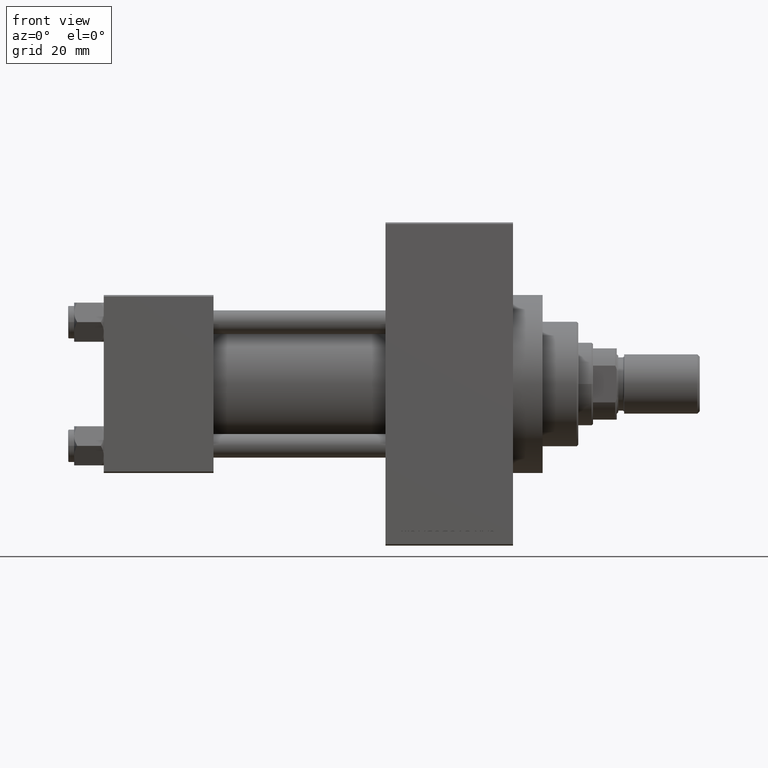
[diagram: clean part render]
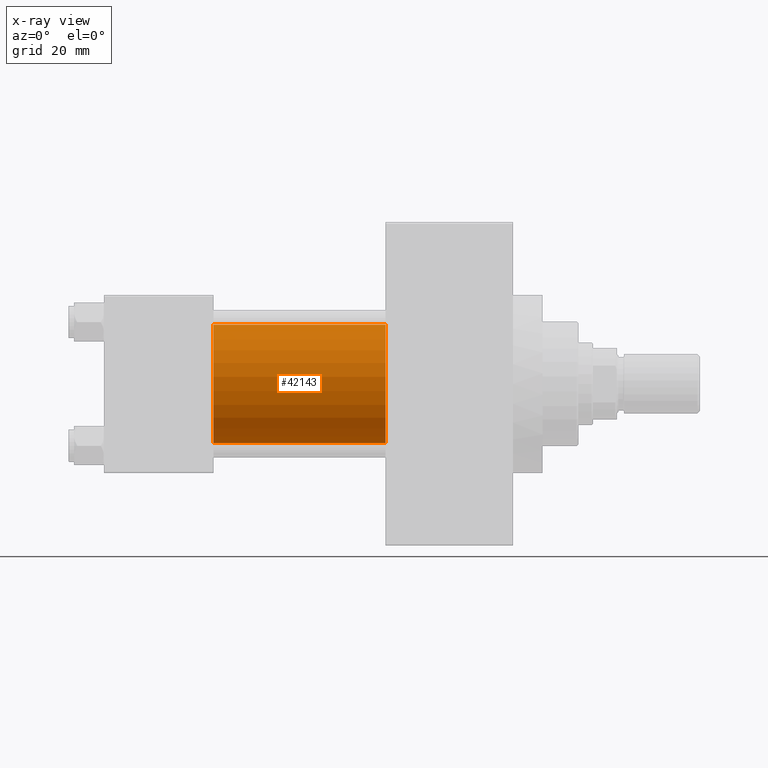
[diagram: x-ray — body ghosted, one internal face saturated and labeled with its STEP entity id]
A machine part, front view, then the same camera in x-ray: the body is ghosted and one INTERNAL B-rep face — a face not visible from any outside direction — is saturated and labeled: STEP entity #42143.
In plain terms, the highlighted cylindrical surface (partial cylindrical patch) has radius 20 mm, axis along (-1, -0, -0).
Its self-contained STEP definition (entity closure, byte-faithful):
#1798 = CARTESIAN_POINT ( 'NONE',  ( 37.00000000000000000, -2.602085213965210642E-15, 20.00000000000000000 ) ) ;
#1834 = VECTOR ( 'NONE', #39247, 1000.000000000000000 ) ;
#2798 = EDGE_CURVE ( 'NONE', #9834, #19794, #35581, .T. ) ;
#4680 = CARTESIAN_POINT ( 'NONE',  ( 37.00000000000000000, -2.602085213965210642E-15, 0.000000000000000000 ) ) ;
#4752 = EDGE_CURVE ( 'NONE', #45985, #19794, #24880, .T. ) ;
#6424 = LINE ( 'NONE', #24527, #1834 ) ;
#7129 = AXIS2_PLACEMENT_3D ( 'NONE', #40737, #37113, #18535 ) ;
#9610 = EDGE_CURVE ( 'NONE', #27165, #45985, #6424, .T. ) ;
#9834 = VERTEX_POINT ( 'NONE', #37512 ) ;
#10930 = VECTOR ( 'NONE', #17470, 1000.000000000000000 ) ;
#12672 = EDGE_LOOP ( 'NONE', ( #15036, #35348, #18178, #28653 ) ) ;
#14904 = CIRCLE ( 'NONE', #44949, 20.00000000000000000 ) ;
#15036 = ORIENTED_EDGE ( 'NONE', *, *, #47677, .T. ) ;
#17470 = DIRECTION ( 'NONE',  ( -1.000000000000000000, -0.000000000000000000, -0.000000000000000000 ) ) ;
#18178 = ORIENTED_EDGE ( 'NONE', *, *, #4752, .F. ) ;
#18535 = DIRECTION ( 'NONE',  ( 0.000000000000000000, 0.000000000000000000, 1.000000000000000000 ) ) ;
#18694 = CARTESIAN_POINT ( 'NONE',  ( 95.00000000000000000, -2.602085213965210642E-15, 0.000000000000000000 ) ) ;
#19794 = VERTEX_POINT ( 'NONE', #24073 ) ;
#24073 = CARTESIAN_POINT ( 'NONE',  ( 37.00000000000000000, -1.527916156705046464E-16, -20.00000000000000000 ) ) ;
#24527 = CARTESIAN_POINT ( 'NONE',  ( 95.00000000000000000, -2.602085213965210642E-15, 20.00000000000000000 ) ) ;
#24880 = CIRCLE ( 'NONE', #27961, 20.00000000000000000 ) ;
#26024 = CYLINDRICAL_SURFACE ( 'NONE', #7129, 20.00000000000000000 ) ;
#27165 = VERTEX_POINT ( 'NONE', #37762 ) ;
#27961 = AXIS2_PLACEMENT_3D ( 'NONE', #4680, #33886, #45456 ) ;
#28653 = ORIENTED_EDGE ( 'NONE', *, *, #9610, .F. ) ;
#33424 = DIRECTION ( 'NONE',  ( 1.000000000000000000, 0.000000000000000000, 0.000000000000000000 ) ) ;
#33886 = DIRECTION ( 'NONE',  ( 1.000000000000000000, 0.000000000000000000, 0.000000000000000000 ) ) ;
#35348 = ORIENTED_EDGE ( 'NONE', *, *, #2798, .T. ) ;
#35581 = LINE ( 'NONE', #39439, #10930 ) ;
#37113 = DIRECTION ( 'NONE',  ( -1.000000000000000000, -0.000000000000000000, -0.000000000000000000 ) ) ;
#37512 = CARTESIAN_POINT ( 'NONE',  ( 95.00000000000000000, -1.527916156705046464E-16, -20.00000000000000000 ) ) ;
#37762 = CARTESIAN_POINT ( 'NONE',  ( 95.00000000000000000, -2.602085213965210642E-15, 20.00000000000000000 ) ) ;
#39247 = DIRECTION ( 'NONE',  ( -1.000000000000000000, -0.000000000000000000, -0.000000000000000000 ) ) ;
#39439 = CARTESIAN_POINT ( 'NONE',  ( 95.00000000000000000, -1.527916156705046464E-16, -20.00000000000000000 ) ) ;
#40737 = CARTESIAN_POINT ( 'NONE',  ( 95.00000000000000000, -2.602085213965210642E-15, 0.000000000000000000 ) ) ;
#42143 = ADVANCED_FACE ( 'NONE', ( #47742 ), #26024, .F. ) ;
#44515 = DIRECTION ( 'NONE',  ( 0.000000000000000000, 0.000000000000000000, -1.000000000000000000 ) ) ;
#44949 = AXIS2_PLACEMENT_3D ( 'NONE', #18694, #33424, #44515 ) ;
#45456 = DIRECTION ( 'NONE',  ( 0.000000000000000000, 0.000000000000000000, -1.000000000000000000 ) ) ;
#45985 = VERTEX_POINT ( 'NONE', #1798 ) ;
#47677 = EDGE_CURVE ( 'NONE', #27165, #9834, #14904, .T. ) ;
#47742 = FACE_OUTER_BOUND ( 'NONE', #12672, .T. ) ;